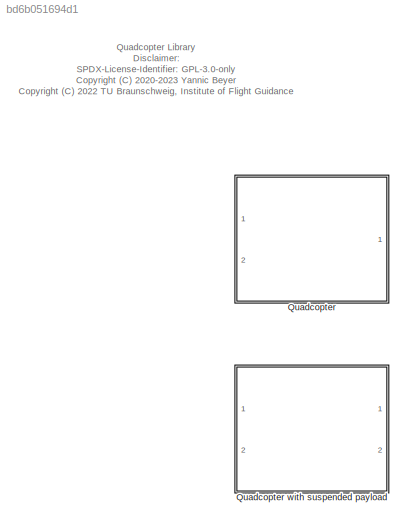
MODEL slx_bd6b051694d1
KIND library
CONFIG AbsTol = auto
CONFIG EnableMultiTasking = off
CONFIG FixedStep = auto
CONFIG MaxStep = auto
CONFIG MinStep = auto
CONFIG RelTol = 1e-3
CONFIG SampleTimeConstraint = Unconstrained
CONFIG Solver = VariableStepAuto
CONFIG SolverName = VariableStepAuto
CONFIG StartTime = 0.0
CONFIG StopTime = 10.0
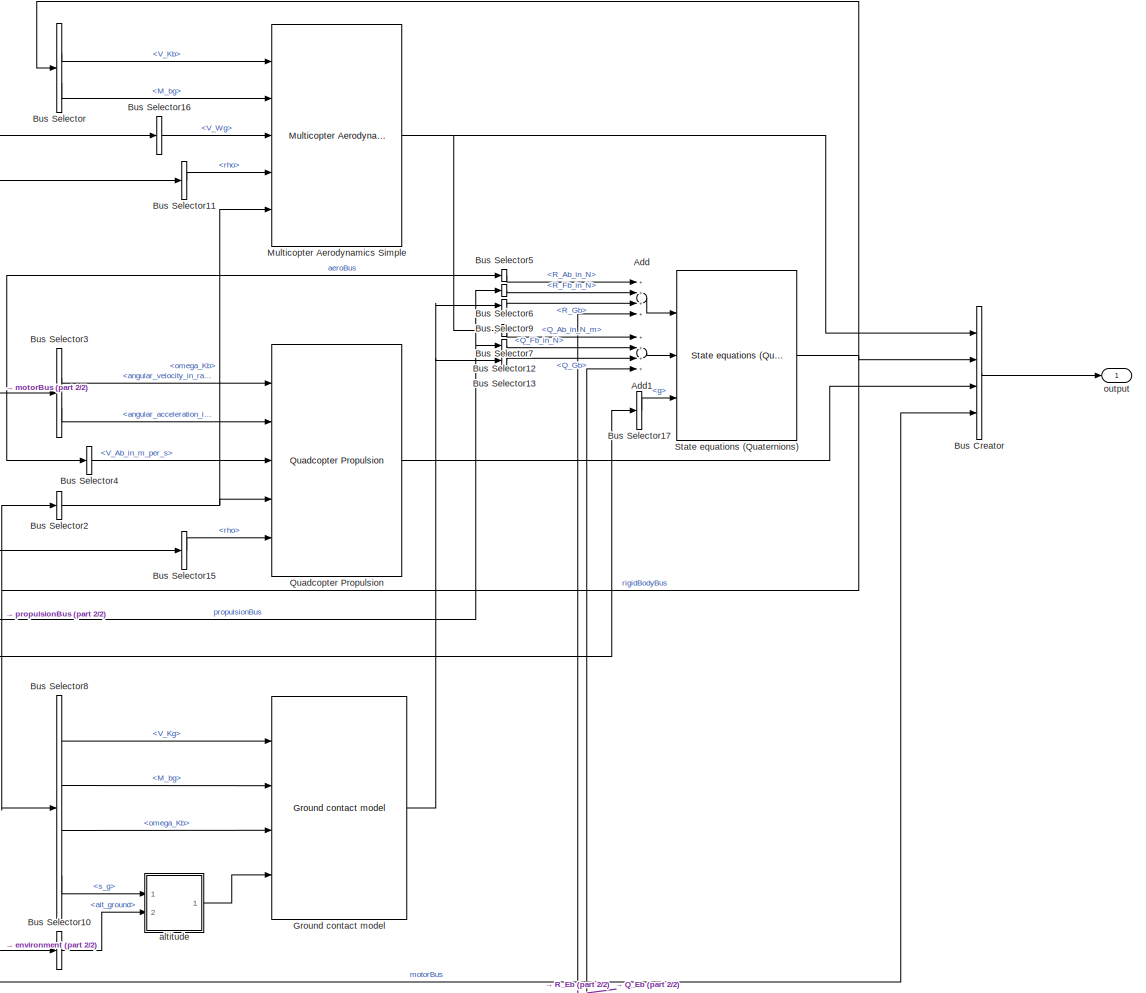
[diagram: Quadcopter - part 1/2, right side, full height]
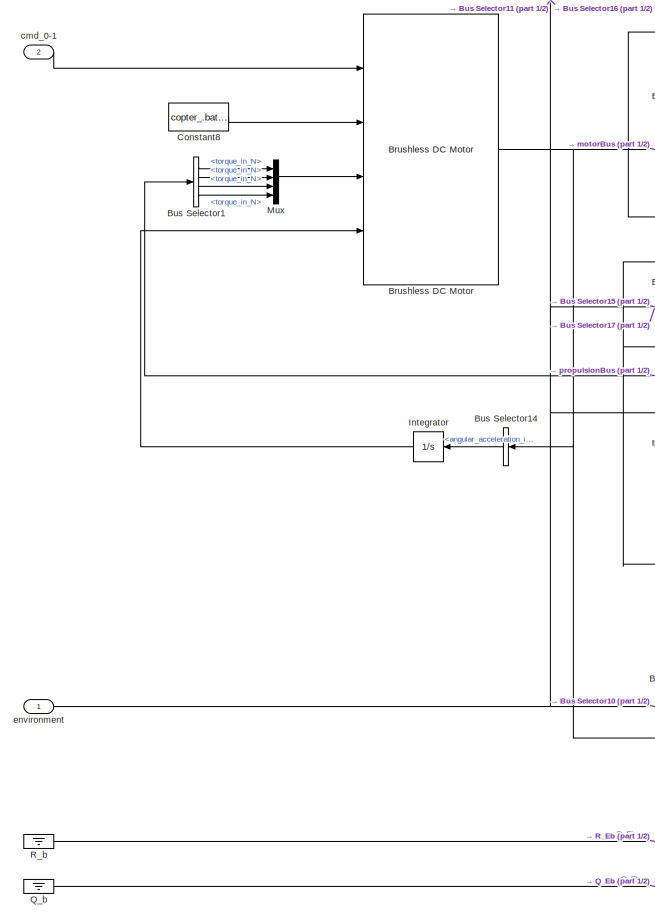
[diagram: Quadcopter - part 2/2, left side, full height]
BLOCK [SubSystem] Quadcopter
  Ports = [2, 1]
  RequestExecContextInheritance = off
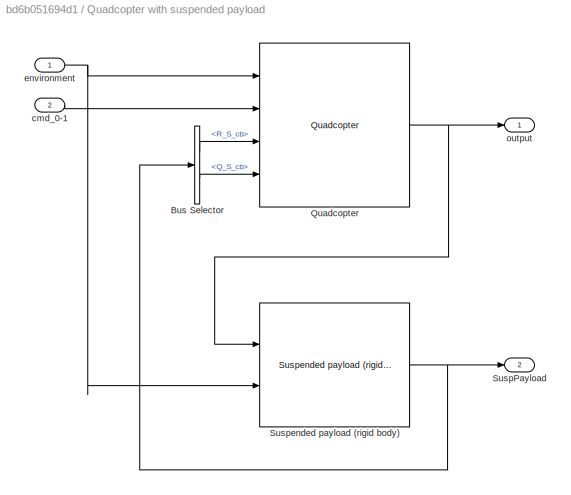
BLOCK [SubSystem] Quadcopter with suspended payload
  Ports = [2, 2]
  RequestExecContextInheritance = off
BLOCK [BusSelector] Quadcopter with suspended payload/Bus Selector
  OutputAsBus = off
  OutputSignals = suspPayloadBus.R_S_cb,suspPayloadBus.Q_S_cb
  Ports = [1, 2]
BLOCK [Reference] Quadcopter with suspended payload/Quadcopter  REF=$bdroot/Quadcopter
  Ports = [4, 1]
  SourceBlock = $bdroot/Quadcopter
BLOCK [Outport] Quadcopter with suspended payload/SuspPayload
  IconDisplay = Port number
  Port = 2
BLOCK [Reference] Quadcopter with suspended payload/Suspended payload (rigid body)  REF=suspended_payload_lib/Suspended payload (rigid body)  (lib defined in slx_1d83270bb88a)
  Ports = [2, 1]
  SourceBlock = suspended_payload_lib/Suspended payload (rigid body)
  SourceProductName = LADAC
  SourceType = Suspended payload (rigid body)
BLOCK [Inport] Quadcopter with suspended payload/cmd_0-1
  IconDisplay = Port number
  Port = 2
BLOCK [Inport] Quadcopter with suspended payload/environment
  IconDisplay = Port number
BLOCK [Outport] Quadcopter with suspended payload/output
  IconDisplay = Port number
BLOCK [Sum] Quadcopter/Add
  InputSameDT = off
  Inputs = ++++
  OutDataTypeStr = Inherit: Inherit via internal rule
  Ports = [4, 1]
  SaturateOnIntegerOverflow = off
BLOCK [Sum] Quadcopter/Add1
  InputSameDT = off
  Inputs = ++++
  OutDataTypeStr = Inherit: Inherit via internal rule
  Ports = [4, 1]
  SaturateOnIntegerOverflow = off
BLOCK [Reference] Quadcopter/Brushless DC Motor  REF=actuators_lib/Brushless DC Motor  (lib defined in slx_c2decc952d1f)
  Ports = [4, 1]
  SourceBlock = actuators_lib/Brushless DC Motor
  SourceProductName = LADAC
BLOCK [BusCreator] Quadcopter/Bus Creator
  DisplayOption = bar
  InheritFromInputs = on
  Inputs = 4
  Ports = [4, 1]
BLOCK [BusSelector] Quadcopter/Bus Selector
  OutputAsBus = off
  OutputSignals = V_Kb,M_bg
  Ports = [1, 2]
BLOCK [BusSelector] Quadcopter/Bus Selector1
  OutputAsBus = off
  OutputSignals = propeller_1.torque_in_N,propeller_2.torque_in_N,propeller_3.torque_in_N,propeller_4.torque_in_N
  Ports = [1, 4]
BLOCK [BusSelector] Quadcopter/Bus Selector10
  OutputAsBus = off
  OutputSignals = alt_ground
  Ports = [1, 1]
BLOCK [BusSelector] Quadcopter/Bus Selector11
  OutputAsBus = off
  OutputSignals = atmosphere.rho
  Ports = [1, 1]
BLOCK [BusSelector] Quadcopter/Bus Selector12
  OutputAsBus = off
  OutputSignals = Q_Fb_in_N
  Ports = [1, 1]
BLOCK [BusSelector] Quadcopter/Bus Selector13
  OutputAsBus = off
  OutputSignals = forces_and_moments.Q_Gb
  Ports = [1, 1]
BLOCK [BusSelector] Quadcopter/Bus Selector14
  OutputAsBus = off
  OutputSignals = angular_acceleration_in_rad_per_square_s
  Ports = [1, 1]
BLOCK [BusSelector] Quadcopter/Bus Selector15
  OutputAsBus = off
  OutputSignals = atmosphere.rho
  Ports = [1, 1]
BLOCK [BusSelector] Quadcopter/Bus Selector16
  OutputAsBus = off
  OutputSignals = wind.V_Wg
  Ports = [1, 1]
BLOCK [BusSelector] Quadcopter/Bus Selector17
  OutputAsBus = off
  OutputSignals = g
  Ports = [1, 1]
BLOCK [BusSelector] Quadcopter/Bus Selector2
  OutputAsBus = off
  OutputSignals = omega_Kb
  Ports = [1, 1]
BLOCK [BusSelector] Quadcopter/Bus Selector3
  OutputAsBus = off
  OutputSignals = angular_velocity_in_rad_per_s,angular_acceleration_in_rad_per_square_s
  Ports = [1, 2]
BLOCK [BusSelector] Quadcopter/Bus Selector4
  OutputAsBus = off
  OutputSignals = V_Ab_in_m_per_s
  Ports = [1, 1]
BLOCK [BusSelector] Quadcopter/Bus Selector5
  OutputAsBus = off
  OutputSignals = R_Ab_in_N
  Ports = [1, 1]
BLOCK [BusSelector] Quadcopter/Bus Selector6
  OutputAsBus = off
  OutputSignals = R_Fb_in_N
  Ports = [1, 1]
BLOCK [BusSelector] Quadcopter/Bus Selector7
  OutputAsBus = off
  OutputSignals = Q_Ab_in_N_m
  Ports = [1, 1]
BLOCK [BusSelector] Quadcopter/Bus Selector8
  OutputAsBus = off
  OutputSignals = V_Kg,M_bg,omega_Kb,s_g
  Ports = [1, 4]
BLOCK [BusSelector] Quadcopter/Bus Selector9
  OutputAsBus = off
  OutputSignals = forces_and_moments.R_Gb
  Ports = [1, 1]
BLOCK [Constant] Quadcopter/Constant8
  Value = copter_.bat.V
BLOCK [Reference] Quadcopter/Ground contact model  REF=ground_lib/Ground contact model  (lib defined in slx_83645a88b0f4)
  Ports = [4, 1]
  SourceBlock = ground_lib/Ground contact model
  SourceProductName = LADAC
BLOCK [Integrator] Quadcopter/Integrator
  ContinuousStateAttributes = 'motor_speed'
  InitialCondition = IC_.omega_mot
  Ports = [1, 1]
BLOCK [Reference] Quadcopter/Multicopter Aerodynamics Simple  REF=multicopter_aerodynamics_simple_lib/Multicopter Aerodynamics Simple  (lib defined in slx_d9ab86c787b5)
  Ports = [5, 1]
  SourceBlock = multicopter_aerodynamics_simple_lib/Multicopter Aerodynamics Simple
  SourceProductName = LADAC
BLOCK [Mux] Quadcopter/Mux
  DisplayOption = bar
  Ports = [4, 1]
BLOCK [Ground] Quadcopter/Q_b
BLOCK [Reference] Quadcopter/Quadcopter Propulsion  REF=quadcopter_propulsion_lib/Quadcopter Propulsion  (lib defined in slx_170bc1676b1f)
  Ports = [5, 1]
  SourceBlock = quadcopter_propulsion_lib/Quadcopter Propulsion
  SourceProductName = LADAC
BLOCK [Ground] Quadcopter/R_b
BLOCK [Reference] Quadcopter/State equations (Quaternions)  REF=rigidBody_lib/State equations
(Quaternions)
  Ports = [3, 1]
  SourceBlock = rigidBody_lib/State equations\n(Quaternions)
  SourceProductName = LADAC
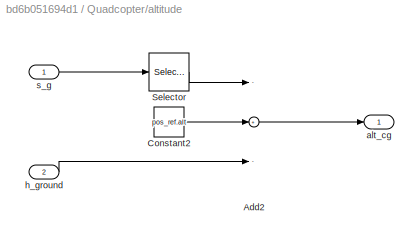
BLOCK [SubSystem] Quadcopter/altitude
  Ports = [2, 1]
  RequestExecContextInheritance = off
BLOCK [Sum] Quadcopter/altitude/Add2
  InputSameDT = off
  Inputs = -+-
  OutDataTypeStr = Inherit: Inherit via internal rule
  Ports = [3, 1]
  SaturateOnIntegerOverflow = off
BLOCK [Constant] Quadcopter/altitude/Constant2
  Value = pos_ref.alt
BLOCK [Selector] Quadcopter/altitude/Selector
  IndexOptions = Index vector (dialog)
  Indices = 3
  InputPortWidth = 3
  OutputSizes = 1
  Ports = [1, 1]
BLOCK [Outport] Quadcopter/altitude/alt_cg
  IconDisplay = Port number
BLOCK [Inport] Quadcopter/altitude/h_ground
  IconDisplay = Port number
  Port = 2
BLOCK [Inport] Quadcopter/altitude/s_g
  IconDisplay = Port number
BLOCK [Inport] Quadcopter/cmd_0-1
  IconDisplay = Port number
  OutDataTypeStr = double
  Port = 2
  PortDimensions = 4
  SamplingMode = Sample based
  SignalType = real
BLOCK [Inport] Quadcopter/environment
  IconDisplay = Port number
  OutDataTypeStr = Bus: envirBus
BLOCK [Outport] Quadcopter/output
  IconDisplay = Port number
ANNOTATION (root): Quadcopter Library Disclaimer: SPDX-License-Identifier: GPL-3.0-only <copyright redacted>
LINE Quadcopter with suspended payload/Bus Selector:1 -> Quadcopter with suspended payload/Quadcopter:3
LINE Quadcopter with suspended payload/Bus Selector:2 -> Quadcopter with suspended payload/Quadcopter:4
NET Quadcopter with suspended payload/Quadcopter:1 -> Quadcopter with suspended payload/Suspended payload (rigid body):1, Quadcopter with suspended payload/output:1
NET Quadcopter with suspended payload/Suspended payload (rigid body):1 -> Quadcopter with suspended payload/Bus Selector:1, Quadcopter with suspended payload/SuspPayload:1
LINE Quadcopter with suspended payload/cmd_0-1:1 -> Quadcopter with suspended payload/Quadcopter:2
NET Quadcopter with suspended payload/environment:1 -> Quadcopter with suspended payload/Quadcopter:1, Quadcopter with suspended payload/Suspended payload (rigid body):2
note: NET lines group one-source signal fan-out (src -> all destinations, sorted); 1:1 wires keep LINE
